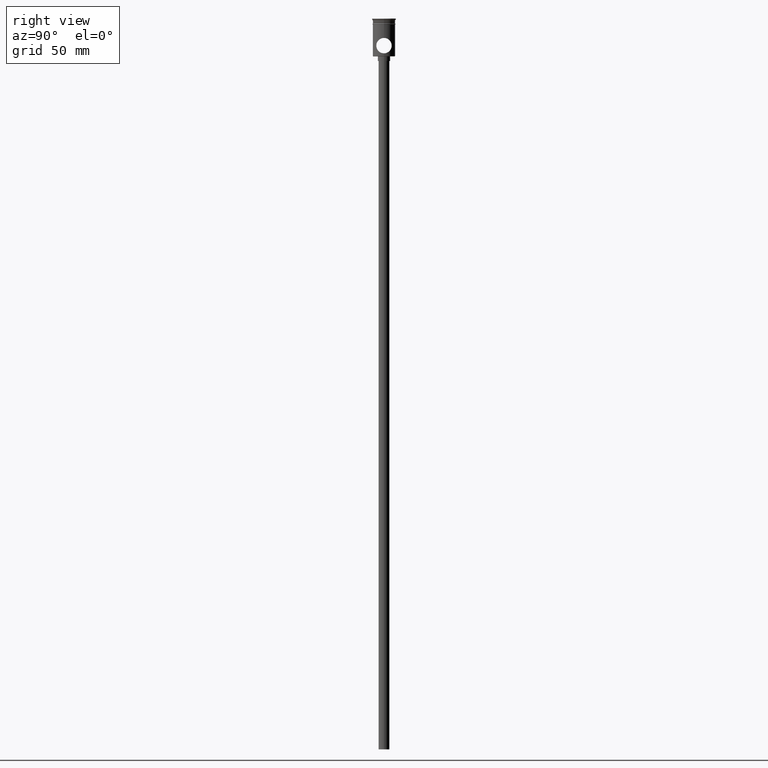
[diagram: clean part render]
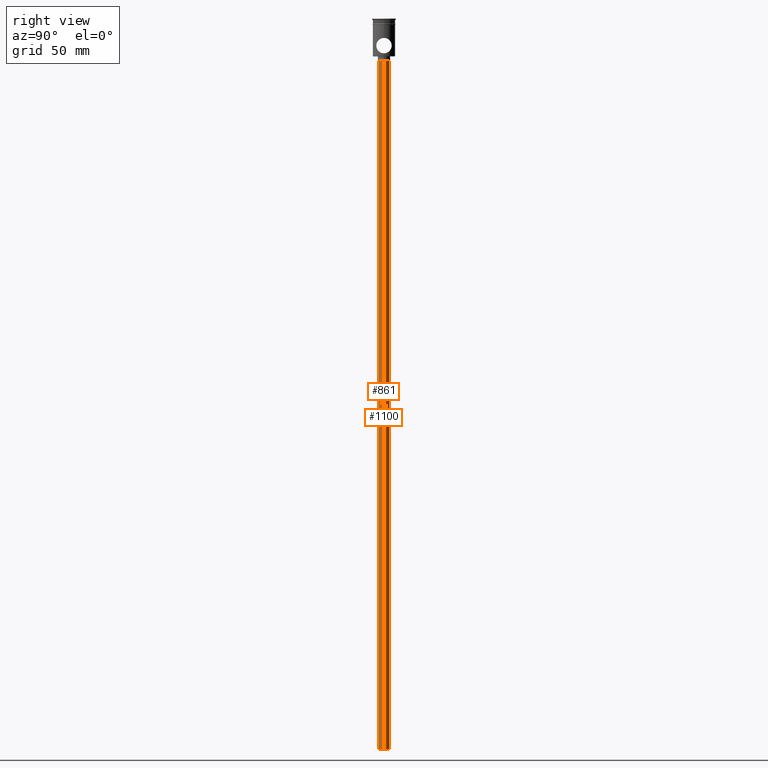
[diagram: same view with one multi-face feature highlighted, each face labeled with its STEP entity id]
A machine part, right view. The highlighted faces form ONE feature: a constant-radius fillet chain: 2 tangent blend faces with common blend radius 3.5 mm. The faces share edges in the B-rep.
Their STEP definitions:
[1] entity #1100 (Cylinder):
#6 = CARTESIAN_POINT ( 'NONE',  ( -3.500000000000000444, 4.286263797015737088E-16, -474.5000000000000568 ) ) ;
#22 = DIRECTION ( 'NONE',  ( -0.000000000000000000, -0.000000000000000000, 1.000000000000000000 ) ) ;
#39 = DIRECTION ( 'NONE',  ( 0.000000000000000000, 0.000000000000000000, -1.000000000000000000 ) ) ;
#125 = CIRCLE ( 'NONE', #926, 3.500000000000000444 ) ;
#210 = LINE ( 'NONE', #1109, #424 ) ;
#279 = CARTESIAN_POINT ( 'NONE',  ( 0.000000000000000000, 0.000000000000000000, -27.50000000000000000 ) ) ;
#321 = VERTEX_POINT ( 'NONE', #444 ) ;
#331 = VERTEX_POINT ( 'NONE', #1356 ) ;
#361 = DIRECTION ( 'NONE',  ( -1.000000000000000000, 0.000000000000000000, 0.000000000000000000 ) ) ;
#424 = VECTOR ( 'NONE', #1080, 1000.000000000000000 ) ;
#444 = CARTESIAN_POINT ( 'NONE',  ( -3.500000000000000444, 4.286263797015737088E-16, -474.5000000000000568 ) ) ;
#471 = DIRECTION ( 'NONE',  ( -0.000000000000000000, -0.000000000000000000, 1.000000000000000000 ) ) ;
#502 = CIRCLE ( 'NONE', #1426, 3.500000000000000444 ) ;
#535 = VERTEX_POINT ( 'NONE', #1486 ) ;
#581 = DIRECTION ( 'NONE',  ( 1.000000000000000000, 0.000000000000000000, 0.000000000000000000 ) ) ;
#595 = ORIENTED_EDGE ( 'NONE', *, *, #837, .T. ) ;
#607 = ORIENTED_EDGE ( 'NONE', *, *, #868, .F. ) ;
#622 = ORIENTED_EDGE ( 'NONE', *, *, #1466, .T. ) ;
#814 = EDGE_LOOP ( 'NONE', ( #899, #622, #595, #607 ) ) ;
#837 = EDGE_CURVE ( 'NONE', #1301, #535, #502, .T. ) ;
#868 = EDGE_CURVE ( 'NONE', #331, #535, #210, .T. ) ;
#899 = ORIENTED_EDGE ( 'NONE', *, *, #1406, .F. ) ;
#926 = AXIS2_PLACEMENT_3D ( 'NONE', #1383, #39, #361 ) ;
#946 = LINE ( 'NONE', #6, #1316 ) ;
#950 = AXIS2_PLACEMENT_3D ( 'NONE', #1150, #471, #581 ) ;
#1028 = CARTESIAN_POINT ( 'NONE',  ( -3.500000000000000444, 4.286263797015737088E-16, -27.50000000000000000 ) ) ;
#1080 = DIRECTION ( 'NONE',  ( -0.000000000000000000, -0.000000000000000000, 1.000000000000000000 ) ) ;
#1100 = ADVANCED_FACE ( 'NONE', ( #1131 ), #1276, .T. ) ;
#1109 = CARTESIAN_POINT ( 'NONE',  ( 3.500000000000000444, 0.000000000000000000, -474.5000000000000568 ) ) ;
#1131 = FACE_OUTER_BOUND ( 'NONE', #814, .T. ) ;
#1150 = CARTESIAN_POINT ( 'NONE',  ( 0.000000000000000000, 0.000000000000000000, -474.5000000000000568 ) ) ;
#1180 = DIRECTION ( 'NONE',  ( -1.000000000000000000, 0.000000000000000000, 0.000000000000000000 ) ) ;
#1276 = CYLINDRICAL_SURFACE ( 'NONE', #950, 3.500000000000000444 ) ;
#1301 = VERTEX_POINT ( 'NONE', #1028 ) ;
#1316 = VECTOR ( 'NONE', #22, 1000.000000000000000 ) ;
#1356 = CARTESIAN_POINT ( 'NONE',  ( 3.500000000000000444, 0.000000000000000000, -474.5000000000000568 ) ) ;
#1383 = CARTESIAN_POINT ( 'NONE',  ( 0.000000000000000000, 0.000000000000000000, -474.5000000000000568 ) ) ;
#1406 = EDGE_CURVE ( 'NONE', #321, #331, #125, .T. ) ;
#1415 = DIRECTION ( 'NONE',  ( 0.000000000000000000, 0.000000000000000000, -1.000000000000000000 ) ) ;
#1426 = AXIS2_PLACEMENT_3D ( 'NONE', #279, #1415, #1180 ) ;
#1466 = EDGE_CURVE ( 'NONE', #321, #1301, #946, .T. ) ;
#1486 = CARTESIAN_POINT ( 'NONE',  ( 3.500000000000000444, 0.000000000000000000, -27.50000000000000000 ) ) ;
[2] entity #861 (Cylinder):
#6 = CARTESIAN_POINT ( 'NONE',  ( -3.500000000000000444, 4.286263797015737088E-16, -474.5000000000000568 ) ) ;
#22 = DIRECTION ( 'NONE',  ( -0.000000000000000000, -0.000000000000000000, 1.000000000000000000 ) ) ;
#210 = LINE ( 'NONE', #1109, #424 ) ;
#321 = VERTEX_POINT ( 'NONE', #444 ) ;
#331 = VERTEX_POINT ( 'NONE', #1356 ) ;
#340 = DIRECTION ( 'NONE',  ( 0.000000000000000000, 0.000000000000000000, -1.000000000000000000 ) ) ;
#424 = VECTOR ( 'NONE', #1080, 1000.000000000000000 ) ;
#444 = CARTESIAN_POINT ( 'NONE',  ( -3.500000000000000444, 4.286263797015737088E-16, -474.5000000000000568 ) ) ;
#453 = CIRCLE ( 'NONE', #747, 3.500000000000000444 ) ;
#463 = ORIENTED_EDGE ( 'NONE', *, *, #1333, .F. ) ;
#535 = VERTEX_POINT ( 'NONE', #1486 ) ;
#563 = CIRCLE ( 'NONE', #1382, 3.500000000000000444 ) ;
#597 = CARTESIAN_POINT ( 'NONE',  ( 0.000000000000000000, 0.000000000000000000, -27.50000000000000000 ) ) ;
#604 = DIRECTION ( 'NONE',  ( -1.000000000000000000, 0.000000000000000000, 0.000000000000000000 ) ) ;
#635 = CARTESIAN_POINT ( 'NONE',  ( 0.000000000000000000, 0.000000000000000000, -474.5000000000000568 ) ) ;
#662 = ORIENTED_EDGE ( 'NONE', *, *, #1466, .F. ) ;
#747 = AXIS2_PLACEMENT_3D ( 'NONE', #1361, #340, #1347 ) ;
#861 = ADVANCED_FACE ( 'NONE', ( #1066 ), #971, .T. ) ;
#868 = EDGE_CURVE ( 'NONE', #331, #535, #210, .T. ) ;
#946 = LINE ( 'NONE', #6, #1316 ) ;
#971 = CYLINDRICAL_SURFACE ( 'NONE', #1191, 3.500000000000000444 ) ;
#1028 = CARTESIAN_POINT ( 'NONE',  ( -3.500000000000000444, 4.286263797015737088E-16, -27.50000000000000000 ) ) ;
#1048 = DIRECTION ( 'NONE',  ( 0.000000000000000000, 0.000000000000000000, -1.000000000000000000 ) ) ;
#1063 = ORIENTED_EDGE ( 'NONE', *, *, #1396, .T. ) ;
#1066 = FACE_OUTER_BOUND ( 'NONE', #1456, .T. ) ;
#1075 = DIRECTION ( 'NONE',  ( -0.000000000000000000, -0.000000000000000000, 1.000000000000000000 ) ) ;
#1080 = DIRECTION ( 'NONE',  ( -0.000000000000000000, -0.000000000000000000, 1.000000000000000000 ) ) ;
#1109 = CARTESIAN_POINT ( 'NONE',  ( 3.500000000000000444, 0.000000000000000000, -474.5000000000000568 ) ) ;
#1177 = ORIENTED_EDGE ( 'NONE', *, *, #868, .T. ) ;
#1191 = AXIS2_PLACEMENT_3D ( 'NONE', #635, #1075, #1220 ) ;
#1220 = DIRECTION ( 'NONE',  ( 1.000000000000000000, 0.000000000000000000, 0.000000000000000000 ) ) ;
#1301 = VERTEX_POINT ( 'NONE', #1028 ) ;
#1316 = VECTOR ( 'NONE', #22, 1000.000000000000000 ) ;
#1333 = EDGE_CURVE ( 'NONE', #331, #321, #453, .T. ) ;
#1347 = DIRECTION ( 'NONE',  ( -1.000000000000000000, 0.000000000000000000, 0.000000000000000000 ) ) ;
#1356 = CARTESIAN_POINT ( 'NONE',  ( 3.500000000000000444, 0.000000000000000000, -474.5000000000000568 ) ) ;
#1361 = CARTESIAN_POINT ( 'NONE',  ( 0.000000000000000000, 0.000000000000000000, -474.5000000000000568 ) ) ;
#1382 = AXIS2_PLACEMENT_3D ( 'NONE', #597, #1048, #604 ) ;
#1396 = EDGE_CURVE ( 'NONE', #535, #1301, #563, .T. ) ;
#1456 = EDGE_LOOP ( 'NONE', ( #662, #463, #1177, #1063 ) ) ;
#1466 = EDGE_CURVE ( 'NONE', #321, #1301, #946, .T. ) ;
#1486 = CARTESIAN_POINT ( 'NONE',  ( 3.500000000000000444, 0.000000000000000000, -27.50000000000000000 ) ) ;